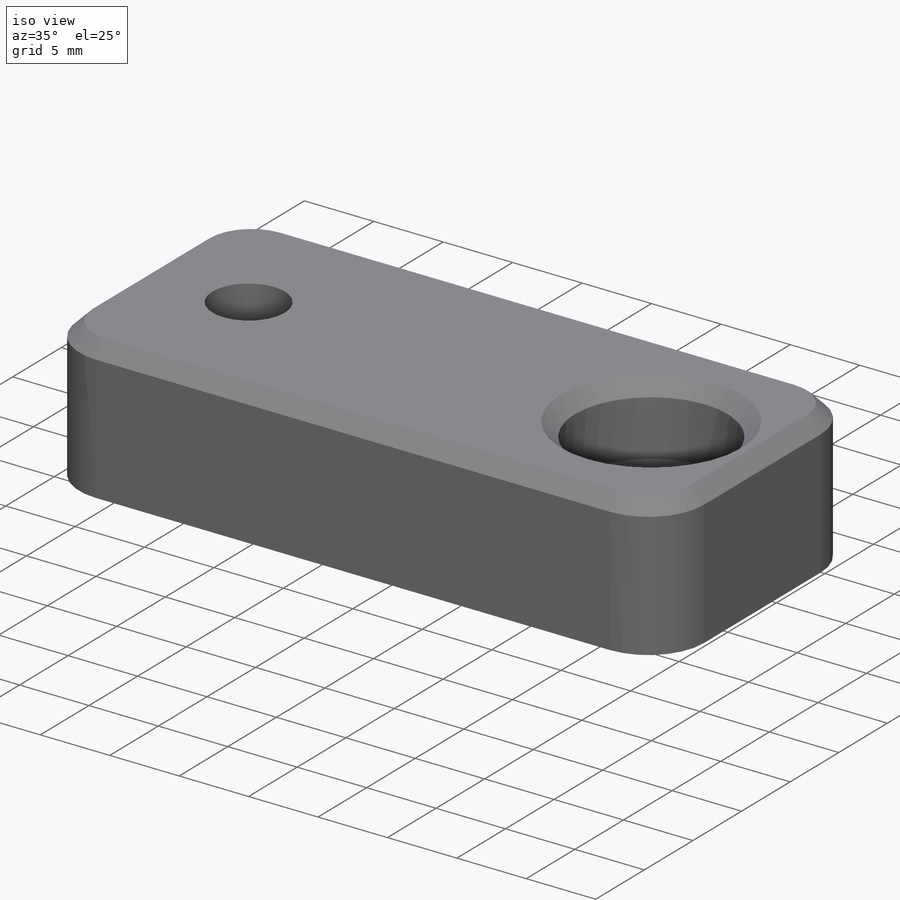
[diagram: iso view]
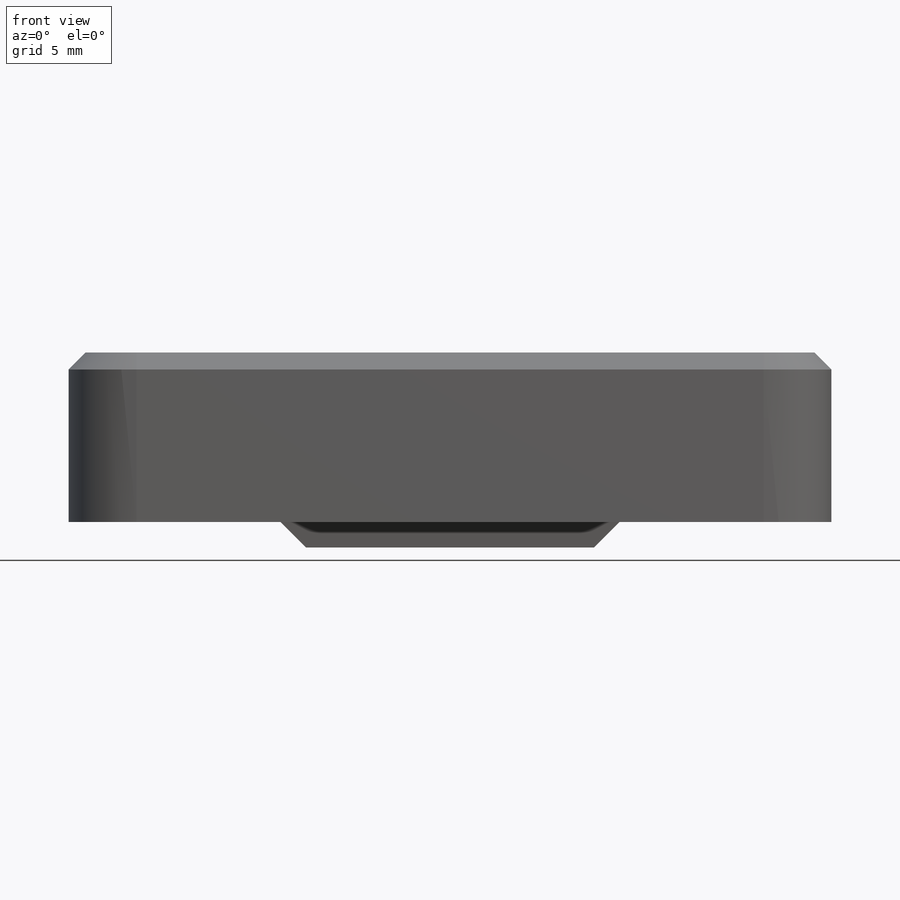
[diagram: front view]
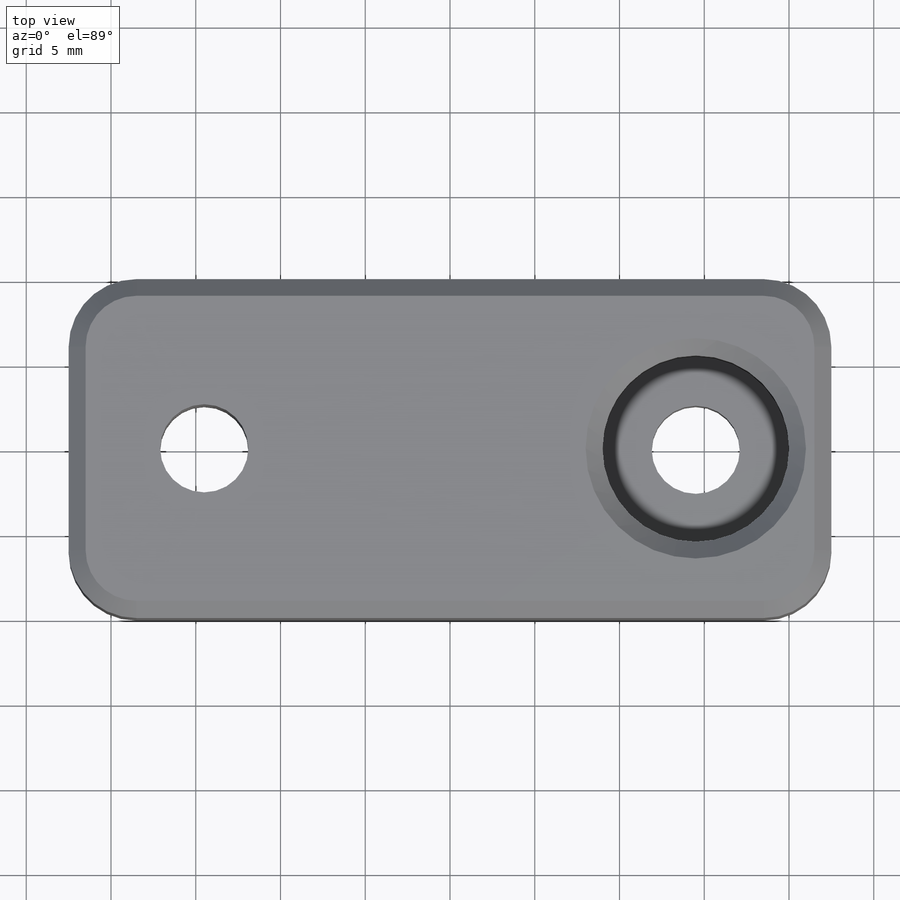
[diagram: top view]
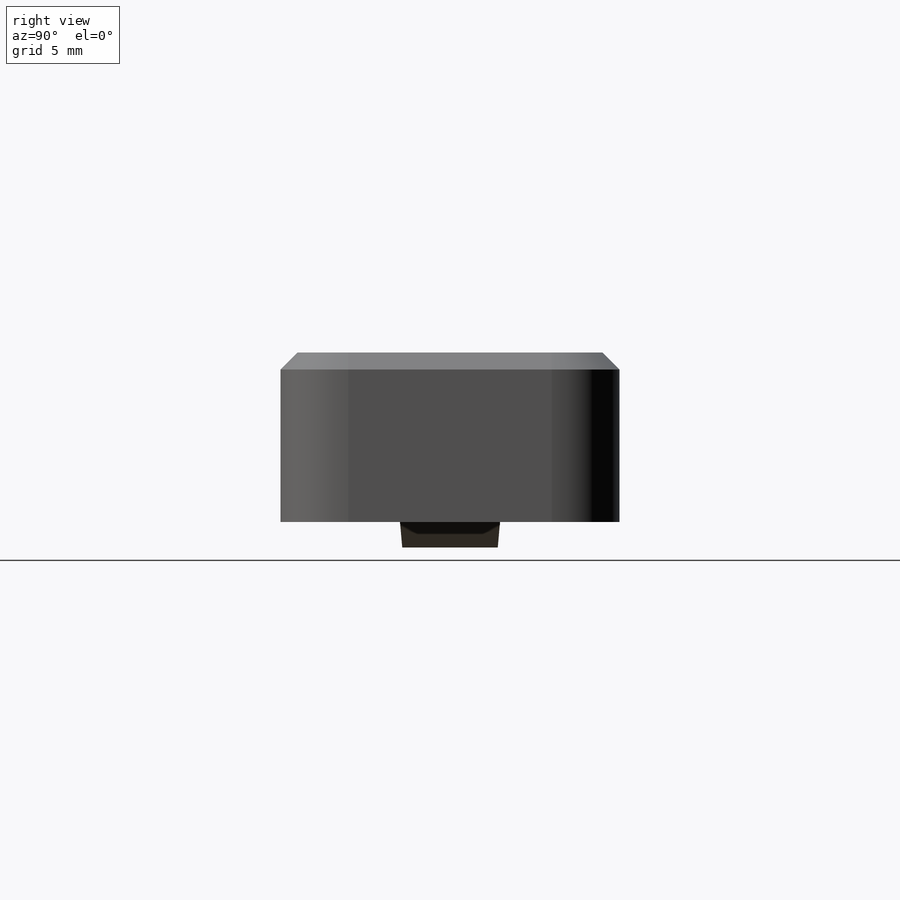
[diagram: right view]
SOLIDWORKS PART (.sldprt)
format: sldprt  version: not decoded by parser v0  size: 315,904 bytes
history: native  units: mm
features: sketch x4, cut_extrude x3, material x1, extrude x1, fillet x1, chamfer x1 (+13 scaffold rows collapsed)
feature tree (24):
  scaffold x13  (default folders/planes/origin — collapsed)
  material  "ABS"
  sketch  "Sketch1"  dims[c1.D1=10.0mm c1.D2=20.0mm c1.D3=5.9mm c1.D4=1.5mm c1.D5=5.334mm c2.D5=95.0deg c2.D6=1.778mm c3.D6=95.0deg c3.D3=5.9mm]
  extrude  "Boss-Extrude1"  Depth=45mm
  sketch  "Sketch2"  dims[D2=5.2mm D3=5.5mm D1=8.0mm]
  cut_extrude  "Cut-Extrude1"  [1 undecoded]
  sketch  "Sketch3"  dims[D1=14.0mm]
  cut_extrude  "Cut-Extrude2"  [1 undecoded]
  fillet  "Fillet1"  Radius=4mm
  sketch  "Sketch6"  dims[D1=11.0mm]
  cut_extrude  "Cut-Extrude3"  Depth=5mm
  chamfer  "Chamfer2"  Distance=1mm Angle=45deg
decode coverage: 8 of 10 modeling features carry decoded parameters
note: 2 parameter values undecoded
note: suppression state not decoded; provenance and decode notes live in map.json
